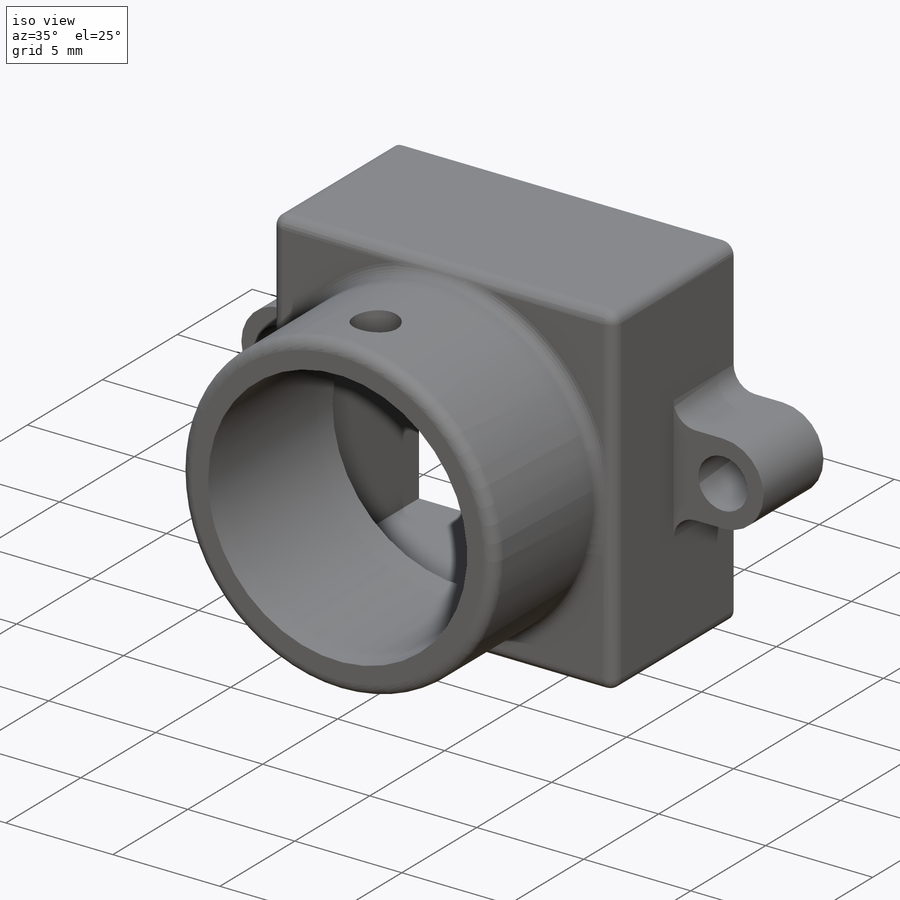
[diagram: iso view]
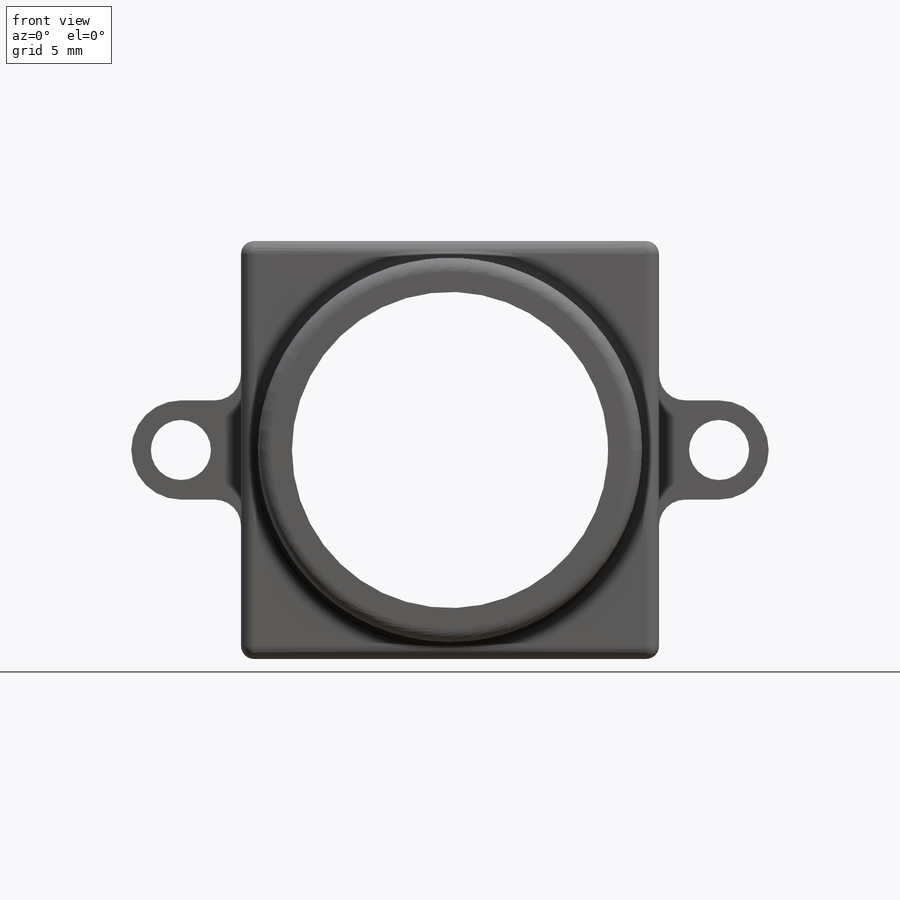
[diagram: front view]
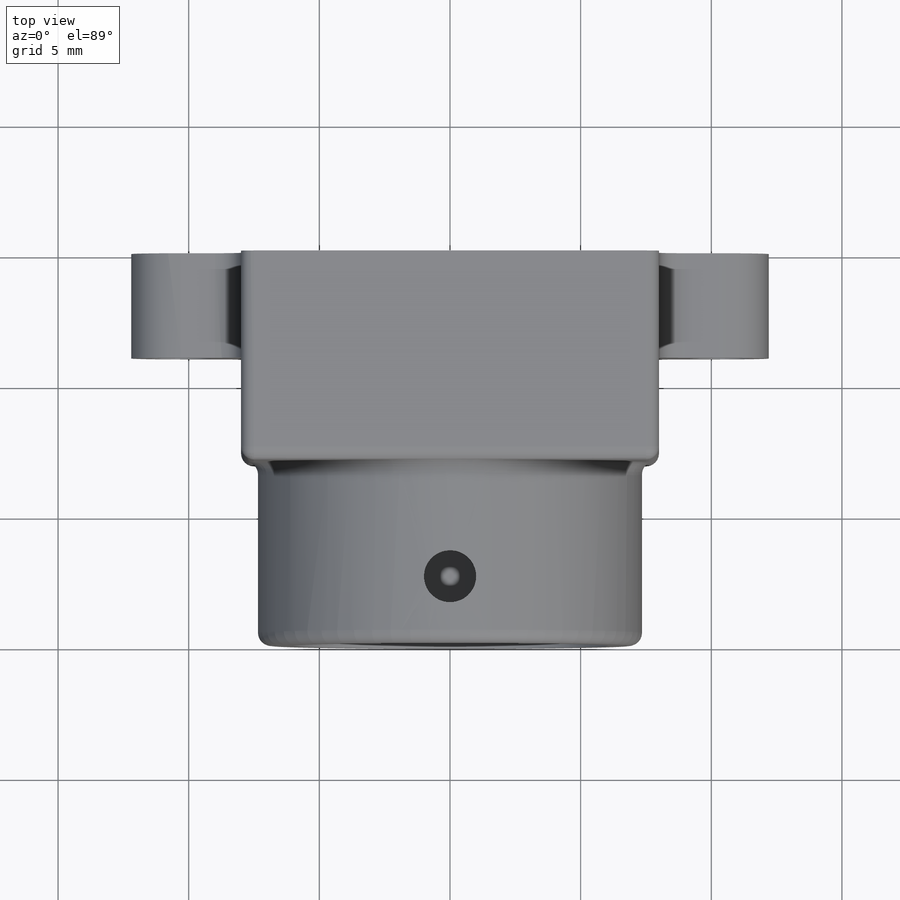
[diagram: top view]
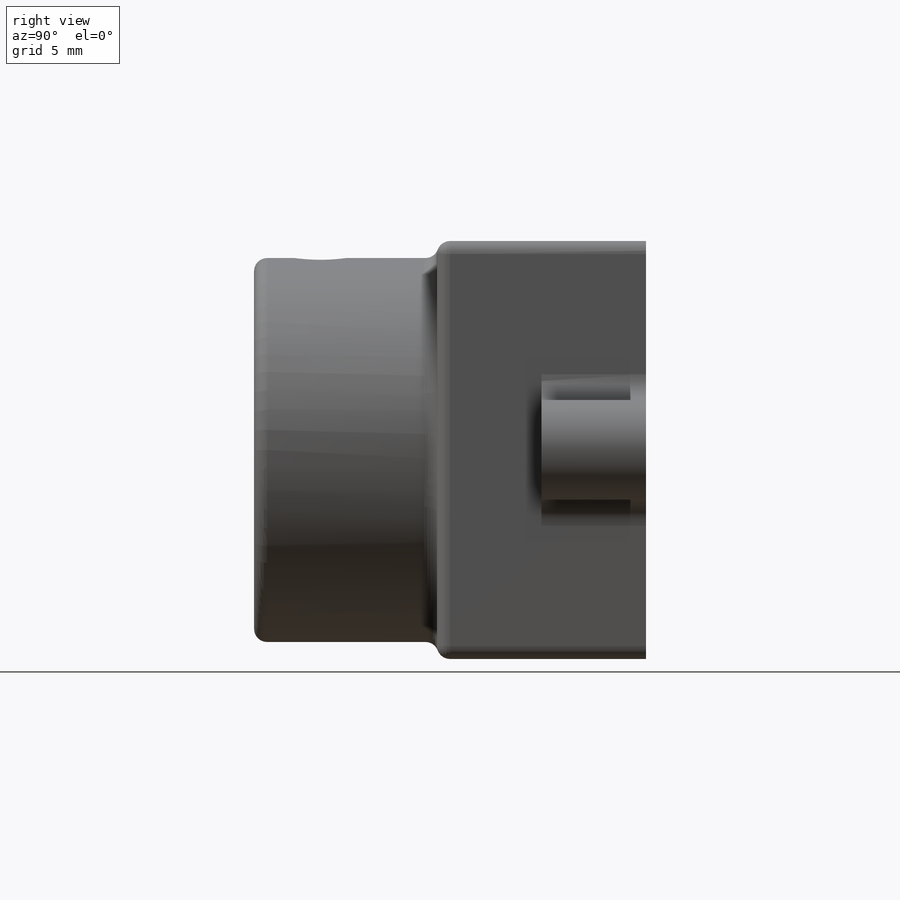
[diagram: right view]
SOLIDWORKS PART (.sldprt)
format: sldprt  version: not decoded by parser v0  size: 285,184 bytes
history: native  units: mm
features: sketch x5, extrude x3, fillet x3, material x1, shell x1, cut_extrude x1 (+12 scaffold rows collapsed)
feature tree (26):
  scaffold x12  (default folders/planes/origin — collapsed)
  material  "Material <not specified>"
  sketch  "Sketch1"  dims[D1=16.0mm]
  extrude  "Extrude1"  Depth=8mm
  sketch  "Sketch2"  dims[D1=14.7mm]
  extrude  "Extrude2"  Depth=7mm
  sketch  "screw_axis"  dims[D1=2.54mm]
  shell  "Shell1"  Thickness=1.3mm
  sketch  "Sketch6"  dims[D1=2.0mm]
  cut_extrude  "Cut-Extrude1"  [1 undecoded]
  sketch  "Sketch4"  dims[c1.D3=~2.188001mm c1.D1=3.8mm c1.D2=12.2mm c2.D3=0.75mm]
  extrude  "Extrude3"  Depth=4mm
  fillet  "Fillet1"  Radius=0.5mm
  fillet  "Fillet2"  Radius=0.5mm
  fillet  "Fillet3"  Radius=1mm
decode coverage: 12 of 13 modeling features carry decoded parameters
note: ~ marks probable driven/reference dimensions
note: 1 parameter value undecoded
note: suppression state not decoded; provenance and decode notes live in map.json
